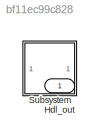
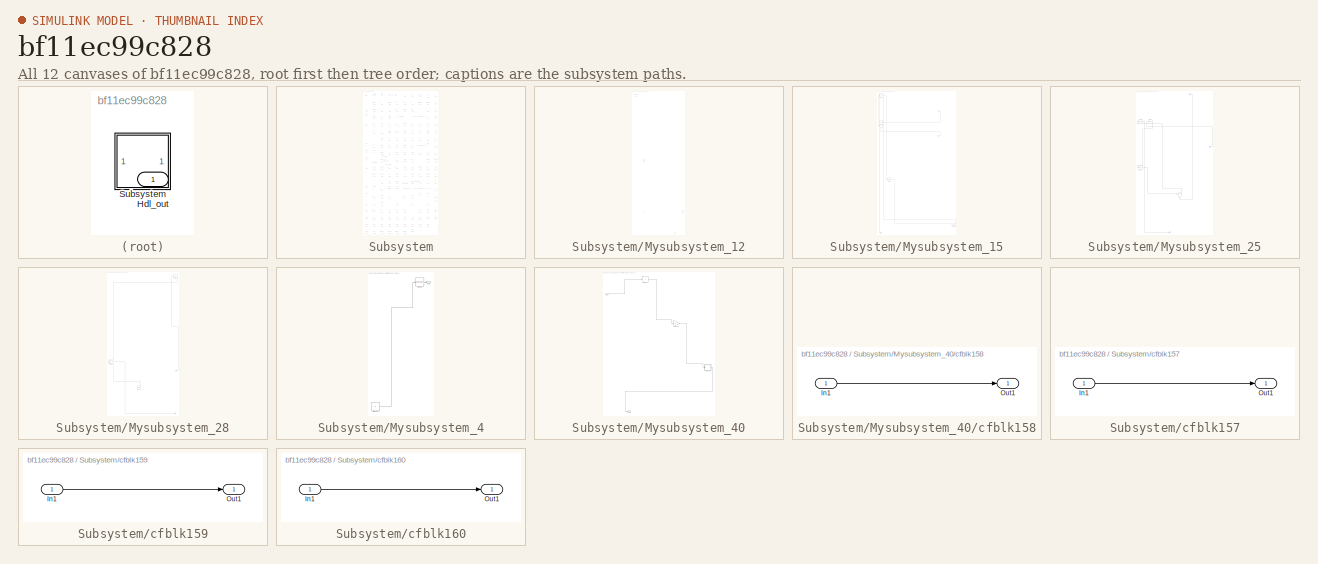
[diagram: thumbnail index - all 12 canvases of the model, root first then tree order]
MODEL slx_bf11ec99c828
KIND model
CONFIG AbsTol = auto
CONFIG EnableMultiTasking = off
CONFIG FixedStep = auto
CONFIG MaxStep = auto
CONFIG MinStep = auto
CONFIG RelTol = 1e-3
CONFIG SampleTimeConstraint = Unconstrained
CONFIG SolverName = VariableStepAuto
CONFIG StartTime = 0.0
CONFIG StopTime = 10.0
BLOCK [Outport] Hdl_out
  OutDataTypeStr = uint8
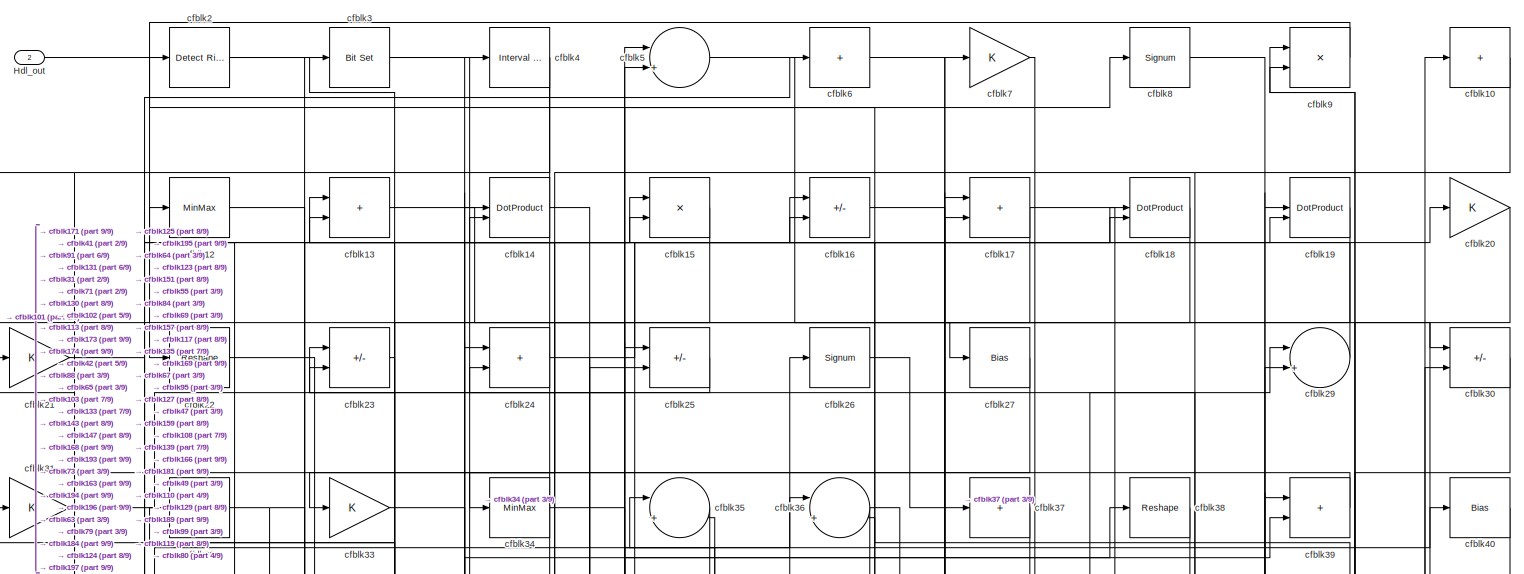
[diagram: Subsystem - part 1/9, full width, top band]
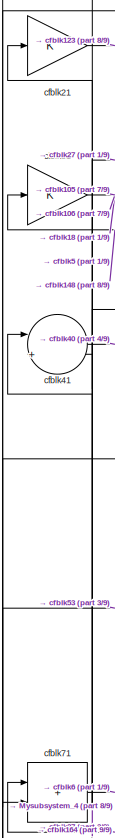
[diagram: Subsystem - part 2/9, top left region]
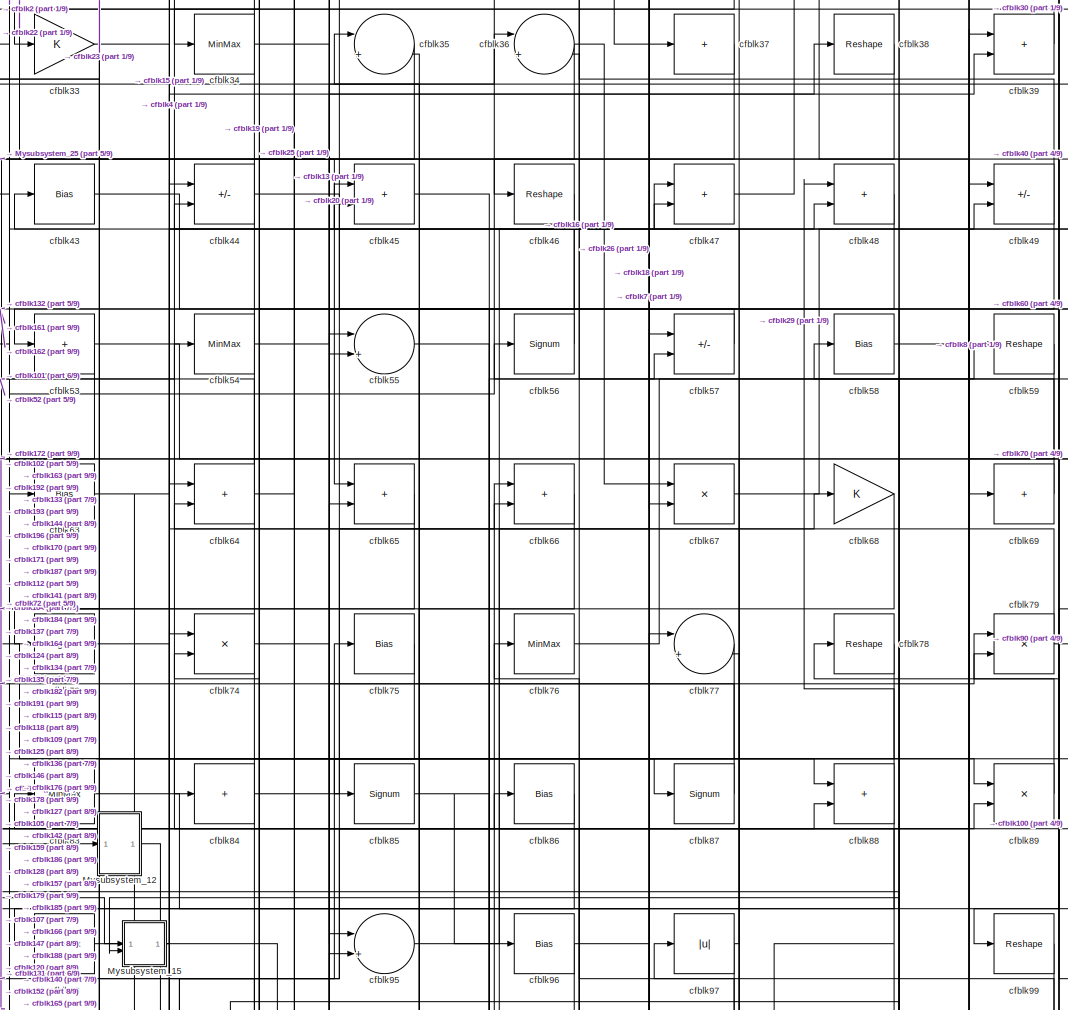
[diagram: Subsystem - part 3/9, top center region]
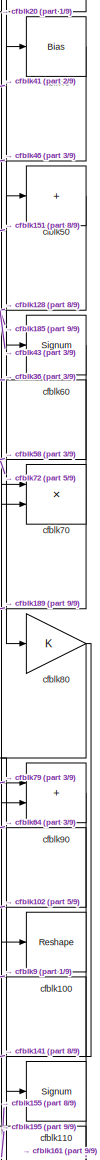
[diagram: Subsystem - part 4/9, middle right region]
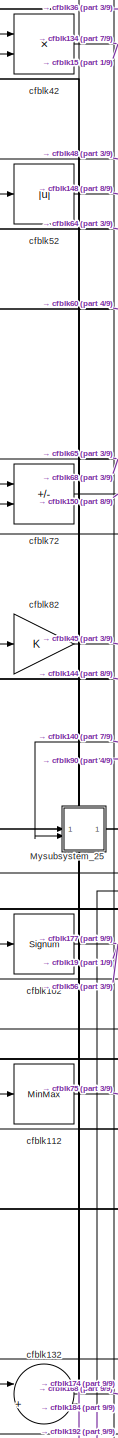
[diagram: Subsystem - part 5/9, middle left region]
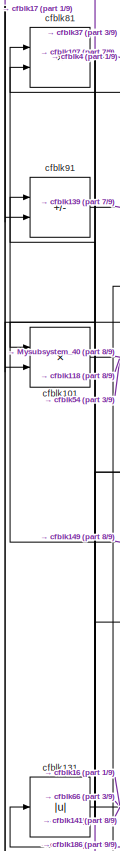
[diagram: Subsystem - part 6/9, middle left region]
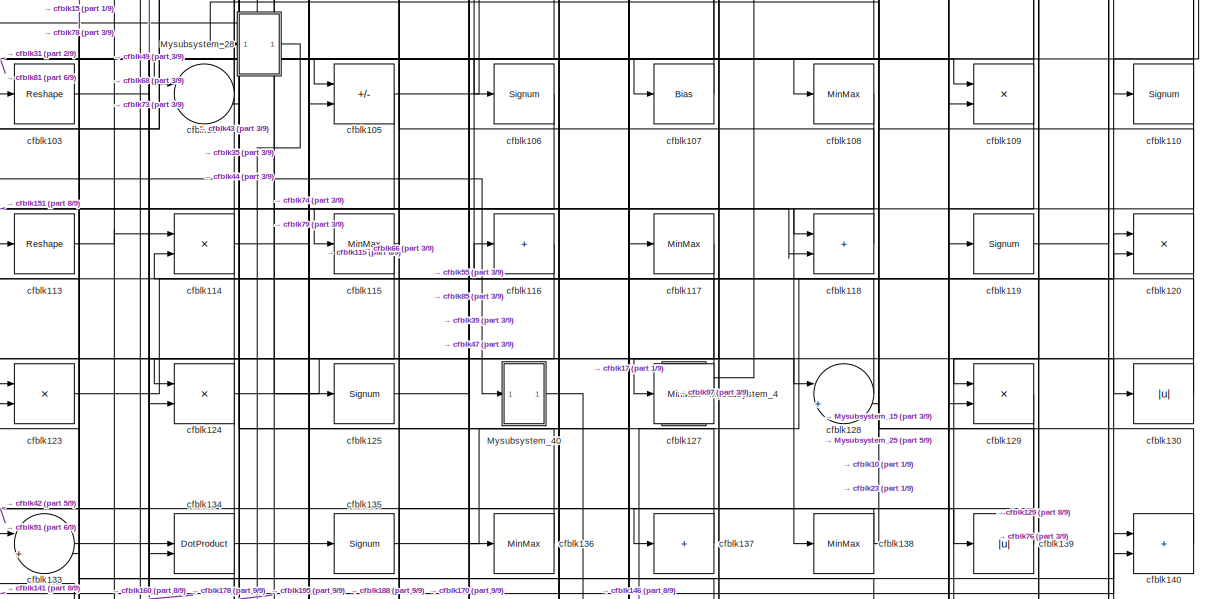
[diagram: Subsystem - part 7/9, full width, middle band]
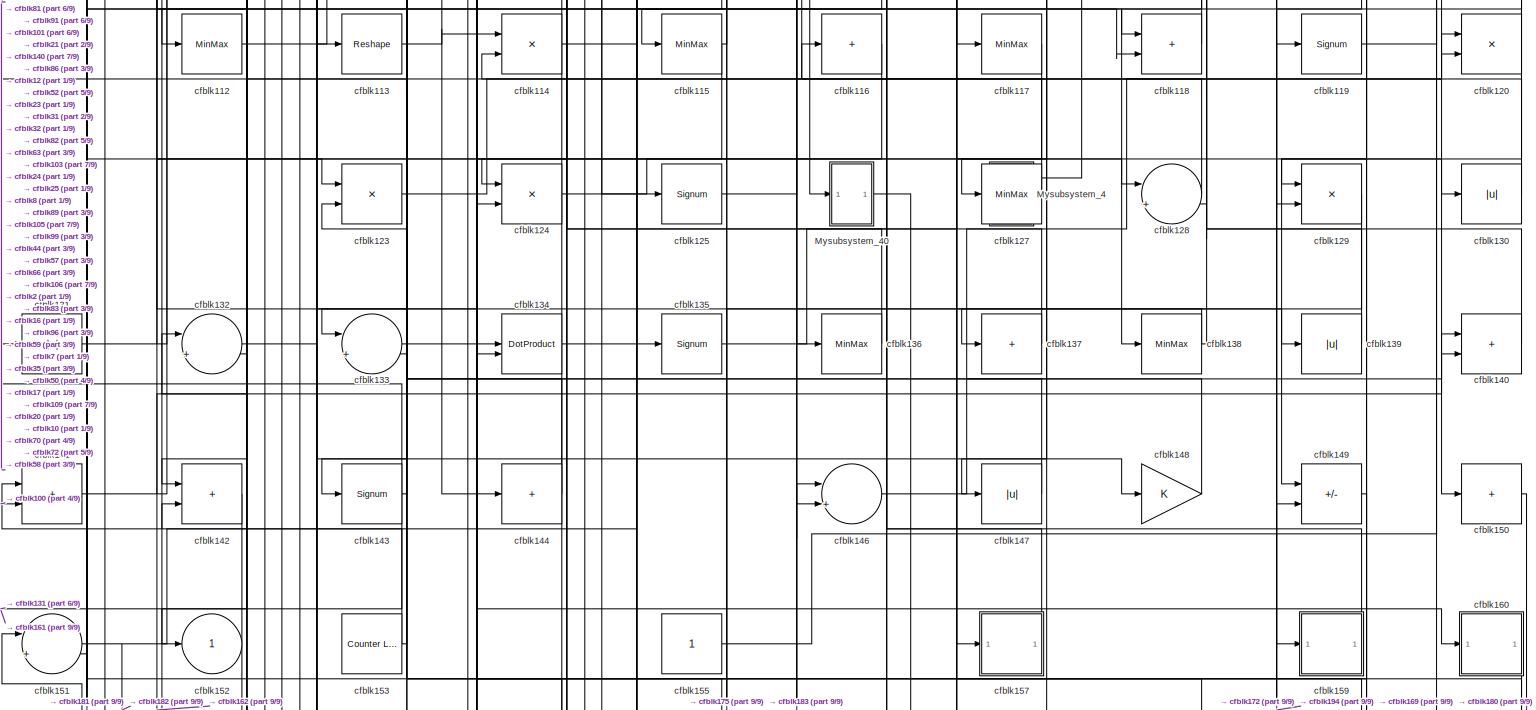
[diagram: Subsystem - part 8/9, full width, bottom band]
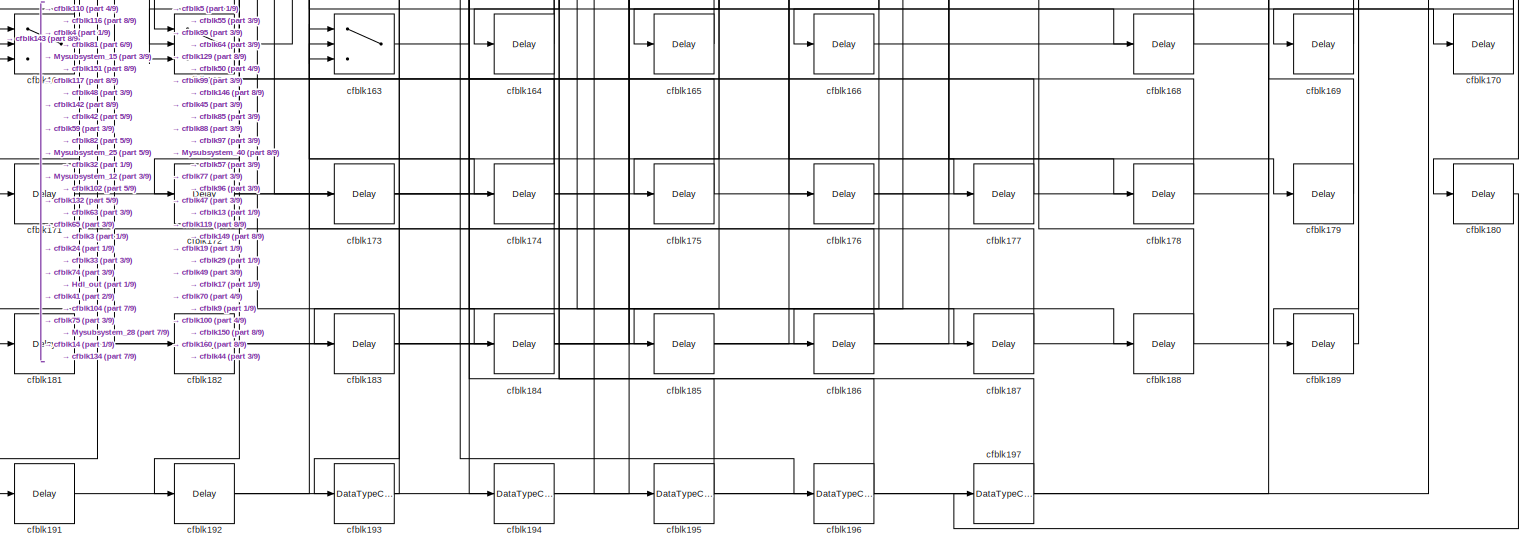
[diagram: Subsystem - part 9/9, full width, bottom band]
BLOCK [SubSystem] Subsystem
BLOCK [Outport] Subsystem/Hdl_out
  OutDataTypeStr = uint8
  Port = 2
BLOCK [SubSystem] Subsystem/Mysubsystem_12
  RTWFcnName = Mysubsystem_12
  RTWFcnNameOpts = User specified
  RTWFileNameOpts = Use function name
  RTWSystemCode = Reusable function
  TreatAsAtomicUnit = on
BLOCK [Inport] Subsystem/Mysubsystem_12/In1
BLOCK [Outport] Subsystem/Mysubsystem_12/Out1
BLOCK [Reference] Subsystem/Mysubsystem_12/cfblk1  REF=hdlsllib/Logic and Bit
Operations/Compare
To Constant
  SourceBlock = hdlsllib/Logic and Bit\nOperations/Compare\nTo Constant
  SourceType = Compare To Constant
BLOCK [Delay] Subsystem/Mysubsystem_12/cfblk167
  InputPortMap = u0
  SampleTime = 1
BLOCK [MinMax] Subsystem/Mysubsystem_12/cfblk92
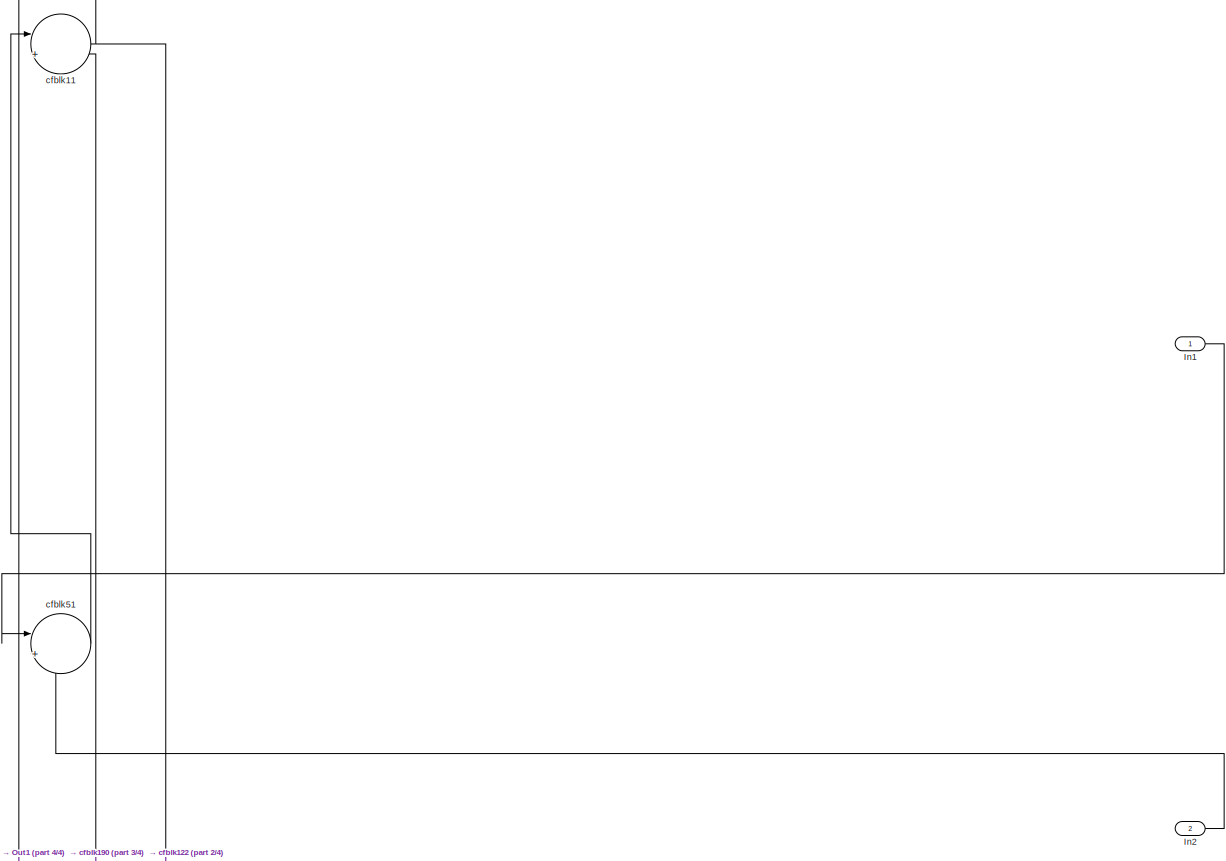
[diagram: Subsystem/Mysubsystem_15 - part 1/4, full width, top band]
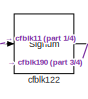
[diagram: Subsystem/Mysubsystem_15 - part 2/4, middle left region]
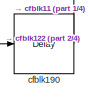
[diagram: Subsystem/Mysubsystem_15 - part 3/4, bottom right region]
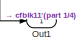
[diagram: Subsystem/Mysubsystem_15 - part 4/4, bottom left region]
BLOCK [SubSystem] Subsystem/Mysubsystem_15
  RTWFcnName = Mysubsystem_15
  RTWFcnNameOpts = User specified
  RTWFileNameOpts = Use function name
  RTWSystemCode = Reusable function
  TreatAsAtomicUnit = on
BLOCK [Inport] Subsystem/Mysubsystem_15/In1
BLOCK [Inport] Subsystem/Mysubsystem_15/In2
  Port = 2
BLOCK [Outport] Subsystem/Mysubsystem_15/Out1
BLOCK [Sum] Subsystem/Mysubsystem_15/cfblk11
  Inputs = |++
BLOCK [Signum] Subsystem/Mysubsystem_15/cfblk122
BLOCK [Delay] Subsystem/Mysubsystem_15/cfblk190
  InputPortMap = u0
  SampleTime = 1
BLOCK [Sum] Subsystem/Mysubsystem_15/cfblk51
  Inputs = |++
BLOCK [SubSystem] Subsystem/Mysubsystem_25
  RTWFcnName = Mysubsystem_25
  RTWFcnNameOpts = User specified
  RTWFileNameOpts = Use function name
  RTWSystemCode = Reusable function
  TreatAsAtomicUnit = on
BLOCK [Inport] Subsystem/Mysubsystem_25/In1
BLOCK [Inport] Subsystem/Mysubsystem_25/In2
  Port = 2
BLOCK [Outport] Subsystem/Mysubsystem_25/Out1
BLOCK [Bias] Subsystem/Mysubsystem_25/cfblk111
  Bias = 0.0
  SaturateOnIntegerOverflow = off
BLOCK [Sum] Subsystem/Mysubsystem_25/cfblk145
  Inputs = |++
BLOCK [Reshape] Subsystem/Mysubsystem_25/cfblk61
BLOCK [Bias] Subsystem/Mysubsystem_25/cfblk62
  Bias = 0.0
  SaturateOnIntegerOverflow = off
BLOCK [SubSystem] Subsystem/Mysubsystem_28
  RTWFcnName = Mysubsystem_28
  RTWFcnNameOpts = User specified
  RTWFileNameOpts = Use function name
  RTWSystemCode = Reusable function
  TreatAsAtomicUnit = on
BLOCK [Inport] Subsystem/Mysubsystem_28/In1
BLOCK [Outport] Subsystem/Mysubsystem_28/Out1
BLOCK [Sum] Subsystem/Mysubsystem_28/cfblk121
  IconShape = rectangular
  Inputs = +-
BLOCK [Reference] Subsystem/Mysubsystem_28/cfblk154  REF=hdlsllib/Sources/Counter
Limited
  SourceBlock = hdlsllib/Sources/Counter\nLimited
  SourceType = Counter Limited
BLOCK [Abs] Subsystem/Mysubsystem_28/cfblk28
  SaturateOnIntegerOverflow = off
BLOCK [SubSystem] Subsystem/Mysubsystem_4
  RTWFcnName = Mysubsystem_4
  RTWFcnNameOpts = User specified
  RTWFileNameOpts = Use function name
  RTWSystemCode = Reusable function
  TreatAsAtomicUnit = on
BLOCK [Outport] Subsystem/Mysubsystem_4/Out1
BLOCK [Constant] Subsystem/Mysubsystem_4/cfblk156
  SampleTime = -1
BLOCK [Reshape] Subsystem/Mysubsystem_4/cfblk98
BLOCK [SubSystem] Subsystem/Mysubsystem_40
  RTWFcnName = Mysubsystem_40
  RTWFcnNameOpts = User specified
  RTWFileNameOpts = Use function name
  RTWSystemCode = Reusable function
  TreatAsAtomicUnit = on
BLOCK [Inport] Subsystem/Mysubsystem_40/In1
BLOCK [Outport] Subsystem/Mysubsystem_40/Out1
BLOCK [Gain] Subsystem/Mysubsystem_40/cfblk126
BLOCK [SubSystem] Subsystem/Mysubsystem_40/cfblk158
  LibrarySourceBlock = hdlsllib/Ports &\nSubsystems/Subsystem
BLOCK [Inport] Subsystem/Mysubsystem_40/cfblk158/In1
BLOCK [Outport] Subsystem/Mysubsystem_40/cfblk158/Out1
BLOCK [Sum] Subsystem/Mysubsystem_40/cfblk94
  IconShape = rectangular
  Inputs = +
BLOCK [Sum] Subsystem/cfblk10
  IconShape = rectangular
  Inputs = +
  OutDataTypeStr = uint8
BLOCK [Reshape] Subsystem/cfblk100
BLOCK [Product] Subsystem/cfblk101
  Inputs = */
  OutDataTypeStr = uint8
  RndMeth = Zero
  SaturateOnIntegerOverflow = on
BLOCK [Signum] Subsystem/cfblk102
BLOCK [Reshape] Subsystem/cfblk103
BLOCK [Sum] Subsystem/cfblk104
  Inputs = |++
  OutDataTypeStr = uint8
BLOCK [Sum] Subsystem/cfblk105
  IconShape = rectangular
  Inputs = +-
  OutDataTypeStr = uint8
BLOCK [Signum] Subsystem/cfblk106
BLOCK [Bias] Subsystem/cfblk107
  Bias = 0.0
  SaturateOnIntegerOverflow = off
BLOCK [MinMax] Subsystem/cfblk108
  OutDataTypeStr = uint8
BLOCK [Product] Subsystem/cfblk109
  Inputs = */
  OutDataTypeStr = uint8
  RndMeth = Zero
  SaturateOnIntegerOverflow = on
BLOCK [Signum] Subsystem/cfblk110
BLOCK [MinMax] Subsystem/cfblk112
  OutDataTypeStr = uint8
BLOCK [Reshape] Subsystem/cfblk113
BLOCK [Product] Subsystem/cfblk114
  Inputs = */
  OutDataTypeStr = uint8
  RndMeth = Zero
  SaturateOnIntegerOverflow = on
BLOCK [MinMax] Subsystem/cfblk115
  OutDataTypeStr = uint8
BLOCK [Sum] Subsystem/cfblk116
  IconShape = rectangular
  Inputs = +
  OutDataTypeStr = uint8
BLOCK [MinMax] Subsystem/cfblk117
  OutDataTypeStr = uint8
BLOCK [Sum] Subsystem/cfblk118
  IconShape = rectangular
  OutDataTypeStr = uint8
BLOCK [Signum] Subsystem/cfblk119
BLOCK [MinMax] Subsystem/cfblk12
  OutDataTypeStr = uint8
BLOCK [Product] Subsystem/cfblk120
  Inputs = */
  OutDataTypeStr = uint8
  RndMeth = Zero
  SaturateOnIntegerOverflow = on
BLOCK [Product] Subsystem/cfblk123
  Inputs = */
  OutDataTypeStr = uint8
  RndMeth = Zero
  SaturateOnIntegerOverflow = on
BLOCK [Product] Subsystem/cfblk124
  Inputs = */
  OutDataTypeStr = uint8
  RndMeth = Zero
  SaturateOnIntegerOverflow = on
BLOCK [Signum] Subsystem/cfblk125
BLOCK [MinMax] Subsystem/cfblk127
  OutDataTypeStr = uint8
BLOCK [Sum] Subsystem/cfblk128
  Inputs = |++
  OutDataTypeStr = uint8
BLOCK [Product] Subsystem/cfblk129
  Inputs = */
  OutDataTypeStr = uint8
  RndMeth = Zero
  SaturateOnIntegerOverflow = on
BLOCK [Sum] Subsystem/cfblk13
  IconShape = rectangular
  OutDataTypeStr = uint8
BLOCK [Abs] Subsystem/cfblk130
  OutDataTypeStr = uint8
  SaturateOnIntegerOverflow = off
BLOCK [Abs] Subsystem/cfblk131
  OutDataTypeStr = uint8
  SaturateOnIntegerOverflow = off
BLOCK [Sum] Subsystem/cfblk132
  Inputs = |++
  OutDataTypeStr = uint8
BLOCK [Sum] Subsystem/cfblk133
  Inputs = |++
  OutDataTypeStr = uint8
BLOCK [DotProduct] Subsystem/cfblk134
  OutDataTypeStr = uint8
BLOCK [Signum] Subsystem/cfblk135
BLOCK [MinMax] Subsystem/cfblk136
  OutDataTypeStr = uint8
BLOCK [Sum] Subsystem/cfblk137
  IconShape = rectangular
  Inputs = +
  OutDataTypeStr = uint8
BLOCK [MinMax] Subsystem/cfblk138
  OutDataTypeStr = uint8
BLOCK [Abs] Subsystem/cfblk139
  OutDataTypeStr = uint8
  SaturateOnIntegerOverflow = off
BLOCK [DotProduct] Subsystem/cfblk14
  OutDataTypeStr = uint8
BLOCK [Sum] Subsystem/cfblk140
  IconShape = rectangular
  OutDataTypeStr = uint8
BLOCK [Sum] Subsystem/cfblk141
  IconShape = rectangular
  OutDataTypeStr = uint8
BLOCK [Sum] Subsystem/cfblk142
  IconShape = rectangular
  OutDataTypeStr = uint8
BLOCK [Signum] Subsystem/cfblk143
BLOCK [Sum] Subsystem/cfblk144
  IconShape = rectangular
  Inputs = +
  OutDataTypeStr = uint8
BLOCK [Sum] Subsystem/cfblk146
  Inputs = |++
  OutDataTypeStr = uint8
BLOCK [Abs] Subsystem/cfblk147
  OutDataTypeStr = uint8
  SaturateOnIntegerOverflow = off
BLOCK [Gain] Subsystem/cfblk148
  OutDataTypeStr = uint8
BLOCK [Sum] Subsystem/cfblk149
  IconShape = rectangular
  Inputs = +-
  OutDataTypeStr = uint8
BLOCK [Product] Subsystem/cfblk15
  Inputs = */
  OutDataTypeStr = uint8
  RndMeth = Zero
  SaturateOnIntegerOverflow = on
BLOCK [Sum] Subsystem/cfblk150
  IconShape = rectangular
  Inputs = +
  OutDataTypeStr = uint8
BLOCK [Sum] Subsystem/cfblk151
  Inputs = |++
  OutDataTypeStr = uint8
BLOCK [Outport] Subsystem/cfblk152
  OutDataTypeStr = uint8
  VectorParamsAs1DForOutWhenUnconnected = off
BLOCK [Reference] Subsystem/cfblk153  REF=hdlsllib/Sources/Counter
Limited
  SourceBlock = hdlsllib/Sources/Counter\nLimited
  SourceType = Counter Limited
BLOCK [Constant] Subsystem/cfblk155
  OutDataTypeStr = uint8
  SampleTime = -1
BLOCK [SubSystem] Subsystem/cfblk157
  LibrarySourceBlock = hdlsllib/Ports &\nSubsystems/Subsystem
BLOCK [Inport] Subsystem/cfblk157/In1
BLOCK [Outport] Subsystem/cfblk157/Out1
BLOCK [SubSystem] Subsystem/cfblk159
  LibrarySourceBlock = hdlsllib/Ports &\nSubsystems/Subsystem
BLOCK [Inport] Subsystem/cfblk159/In1
BLOCK [Outport] Subsystem/cfblk159/Out1
BLOCK [Sum] Subsystem/cfblk16
  IconShape = rectangular
  Inputs = +-
  OutDataTypeStr = uint8
BLOCK [SubSystem] Subsystem/cfblk160
  LibrarySourceBlock = hdlsllib/Ports &\nSubsystems/Subsystem
BLOCK [Inport] Subsystem/cfblk160/In1
BLOCK [Outport] Subsystem/cfblk160/Out1
BLOCK [Switch] Subsystem/cfblk161
  InputSameDT = off
  OutDataTypeStr = uint8
  SaturateOnIntegerOverflow = off
BLOCK [Switch] Subsystem/cfblk162
  InputSameDT = off
  OutDataTypeStr = uint8
  SaturateOnIntegerOverflow = off
BLOCK [Switch] Subsystem/cfblk163
  InputSameDT = off
  OutDataTypeStr = uint8
  SaturateOnIntegerOverflow = off
BLOCK [Delay] Subsystem/cfblk164
  InputPortMap = u0
  SampleTime = 1
BLOCK [Delay] Subsystem/cfblk165
  InputPortMap = u0
  SampleTime = 1
BLOCK [Delay] Subsystem/cfblk166
  InputPortMap = u0
  SampleTime = 1
BLOCK [Delay] Subsystem/cfblk168
  InputPortMap = u0
  SampleTime = 1
BLOCK [Delay] Subsystem/cfblk169
  InputPortMap = u0
  SampleTime = 1
BLOCK [Sum] Subsystem/cfblk17
  IconShape = rectangular
  OutDataTypeStr = uint8
BLOCK [Delay] Subsystem/cfblk170
  InputPortMap = u0
  SampleTime = 1
BLOCK [Delay] Subsystem/cfblk171
  InputPortMap = u0
  SampleTime = 1
BLOCK [Delay] Subsystem/cfblk172
  InputPortMap = u0
  SampleTime = 1
BLOCK [Delay] Subsystem/cfblk173
  InputPortMap = u0
  SampleTime = 1
BLOCK [Delay] Subsystem/cfblk174
  InputPortMap = u0
  SampleTime = 1
BLOCK [Delay] Subsystem/cfblk175
  InputPortMap = u0
  SampleTime = 1
BLOCK [Delay] Subsystem/cfblk176
  InputPortMap = u0
  SampleTime = 1
BLOCK [Delay] Subsystem/cfblk177
  InputPortMap = u0
  SampleTime = 1
BLOCK [Delay] Subsystem/cfblk178
  InputPortMap = u0
  SampleTime = 1
BLOCK [Delay] Subsystem/cfblk179
  InputPortMap = u0
  SampleTime = 1
BLOCK [DotProduct] Subsystem/cfblk18
  OutDataTypeStr = uint8
BLOCK [Delay] Subsystem/cfblk180
  InputPortMap = u0
  SampleTime = 1
BLOCK [Delay] Subsystem/cfblk181
  InputPortMap = u0
  SampleTime = 1
BLOCK [Delay] Subsystem/cfblk182
  InputPortMap = u0
  SampleTime = 1
BLOCK [Delay] Subsystem/cfblk183
  InputPortMap = u0
  SampleTime = 1
BLOCK [Delay] Subsystem/cfblk184
  InputPortMap = u0
  SampleTime = 1
BLOCK [Delay] Subsystem/cfblk185
  InputPortMap = u0
  SampleTime = 1
BLOCK [Delay] Subsystem/cfblk186
  InputPortMap = u0
  SampleTime = 1
BLOCK [Delay] Subsystem/cfblk187
  InputPortMap = u0
  SampleTime = 1
BLOCK [Delay] Subsystem/cfblk188
  InputPortMap = u0
  SampleTime = 1
BLOCK [Delay] Subsystem/cfblk189
  InputPortMap = u0
  SampleTime = 1
BLOCK [DotProduct] Subsystem/cfblk19
  OutDataTypeStr = uint8
BLOCK [Delay] Subsystem/cfblk191
  InputPortMap = u0
  SampleTime = 1
BLOCK [Delay] Subsystem/cfblk192
  InputPortMap = u0
  SampleTime = 1
BLOCK [DataTypeConversion] Subsystem/cfblk193
  OutDataTypeStr = uint8
  RndMeth = Floor
  SaturateOnIntegerOverflow = off
BLOCK [DataTypeConversion] Subsystem/cfblk194
  OutDataTypeStr = uint8
  RndMeth = Floor
  SaturateOnIntegerOverflow = off
BLOCK [DataTypeConversion] Subsystem/cfblk195
  OutDataTypeStr = uint8
  RndMeth = Floor
  SaturateOnIntegerOverflow = off
BLOCK [DataTypeConversion] Subsystem/cfblk196
  OutDataTypeStr = uint8
  RndMeth = Floor
  SaturateOnIntegerOverflow = off
BLOCK [DataTypeConversion] Subsystem/cfblk197
  OutDataTypeStr = uint8
  RndMeth = Floor
  SaturateOnIntegerOverflow = off
BLOCK [Reference] Subsystem/cfblk2  REF=hdlsllib/Logic and Bit
Operations/Detect Rise
Nonnegative
  SourceBlock = hdlsllib/Logic and Bit\nOperations/Detect Rise\nNonnegative
  SourceType = Detect Rise Nonnegative
BLOCK [Gain] Subsystem/cfblk20
  OutDataTypeStr = uint8
BLOCK [Gain] Subsystem/cfblk21
  OutDataTypeStr = uint8
BLOCK [Reshape] Subsystem/cfblk22
BLOCK [Sum] Subsystem/cfblk23
  IconShape = rectangular
  Inputs = +-
  OutDataTypeStr = uint8
BLOCK [Sum] Subsystem/cfblk24
  IconShape = rectangular
  OutDataTypeStr = uint8
BLOCK [Sum] Subsystem/cfblk25
  IconShape = rectangular
  Inputs = +-
  OutDataTypeStr = uint8
BLOCK [Signum] Subsystem/cfblk26
BLOCK [Bias] Subsystem/cfblk27
  Bias = 0.0
  SaturateOnIntegerOverflow = off
BLOCK [Sum] Subsystem/cfblk29
  Inputs = |++
  OutDataTypeStr = uint8
BLOCK [Reference] Subsystem/cfblk3  REF=simulink/Logic and Bit
Operations/Bit Set
  LibrarySourceBlock = hdlsllib/Logic and Bit\nOperations/Bit Set
  SourceBlock = simulink/Logic and Bit\nOperations/Bit Set
  SourceType = Bit Set
BLOCK [Sum] Subsystem/cfblk30
  IconShape = rectangular
  Inputs = +-
  OutDataTypeStr = uint8
BLOCK [Gain] Subsystem/cfblk31
  OutDataTypeStr = uint8
BLOCK [MinMax] Subsystem/cfblk32
  OutDataTypeStr = uint8
BLOCK [Gain] Subsystem/cfblk33
  OutDataTypeStr = uint8
BLOCK [MinMax] Subsystem/cfblk34
  OutDataTypeStr = uint8
BLOCK [Sum] Subsystem/cfblk35
  Inputs = |++
  OutDataTypeStr = uint8
BLOCK [Sum] Subsystem/cfblk36
  Inputs = |++
  OutDataTypeStr = uint8
BLOCK [Sum] Subsystem/cfblk37
  IconShape = rectangular
  Inputs = +
  OutDataTypeStr = uint8
BLOCK [Reshape] Subsystem/cfblk38
BLOCK [Sum] Subsystem/cfblk39
  IconShape = rectangular
  OutDataTypeStr = uint8
BLOCK [Reference] Subsystem/cfblk4  REF=hdlsllib/Logic and Bit
Operations/Interval Test
  SourceBlock = hdlsllib/Logic and Bit\nOperations/Interval Test
  SourceType = Interval Test
BLOCK [Bias] Subsystem/cfblk40
  Bias = 0.0
  SaturateOnIntegerOverflow = off
BLOCK [Sum] Subsystem/cfblk41
  Inputs = |++
  OutDataTypeStr = uint8
BLOCK [Product] Subsystem/cfblk42
  Inputs = */
  OutDataTypeStr = uint8
  RndMeth = Zero
  SaturateOnIntegerOverflow = on
BLOCK [Bias] Subsystem/cfblk43
  Bias = 0.0
  SaturateOnIntegerOverflow = off
BLOCK [Sum] Subsystem/cfblk44
  IconShape = rectangular
  Inputs = +-
  OutDataTypeStr = uint8
BLOCK [Sum] Subsystem/cfblk45
  IconShape = rectangular
  OutDataTypeStr = uint8
BLOCK [Reshape] Subsystem/cfblk46
BLOCK [Sum] Subsystem/cfblk47
  IconShape = rectangular
  OutDataTypeStr = uint8
BLOCK [Sum] Subsystem/cfblk48
  IconShape = rectangular
  OutDataTypeStr = uint8
BLOCK [Sum] Subsystem/cfblk49
  IconShape = rectangular
  Inputs = +-
  OutDataTypeStr = uint8
BLOCK [Sum] Subsystem/cfblk5
  Inputs = |++
  OutDataTypeStr = uint8
BLOCK [Sum] Subsystem/cfblk50
  IconShape = rectangular
  Inputs = +
  OutDataTypeStr = uint8
BLOCK [Abs] Subsystem/cfblk52
  OutDataTypeStr = uint8
  SaturateOnIntegerOverflow = off
BLOCK [Sum] Subsystem/cfblk53
  IconShape = rectangular
  Inputs = +
  OutDataTypeStr = uint8
BLOCK [MinMax] Subsystem/cfblk54
  OutDataTypeStr = uint8
BLOCK [Sum] Subsystem/cfblk55
  Inputs = |++
  OutDataTypeStr = uint8
BLOCK [Signum] Subsystem/cfblk56
BLOCK [Sum] Subsystem/cfblk57
  IconShape = rectangular
  Inputs = +-
  OutDataTypeStr = uint8
BLOCK [Bias] Subsystem/cfblk58
  Bias = 0.0
  SaturateOnIntegerOverflow = off
BLOCK [Reshape] Subsystem/cfblk59
BLOCK [Sum] Subsystem/cfblk6
  IconShape = rectangular
  Inputs = +
  OutDataTypeStr = uint8
BLOCK [Signum] Subsystem/cfblk60
BLOCK [Bias] Subsystem/cfblk63
  Bias = 0.0
  SaturateOnIntegerOverflow = off
BLOCK [Sum] Subsystem/cfblk64
  IconShape = rectangular
  OutDataTypeStr = uint8
BLOCK [Sum] Subsystem/cfblk65
  IconShape = rectangular
  OutDataTypeStr = uint8
BLOCK [Sum] Subsystem/cfblk66
  IconShape = rectangular
  OutDataTypeStr = uint8
BLOCK [Product] Subsystem/cfblk67
  Inputs = */
  OutDataTypeStr = uint8
  RndMeth = Zero
  SaturateOnIntegerOverflow = on
BLOCK [Gain] Subsystem/cfblk68
  OutDataTypeStr = uint8
BLOCK [Sum] Subsystem/cfblk69
  IconShape = rectangular
  Inputs = +
  OutDataTypeStr = uint8
BLOCK [Gain] Subsystem/cfblk7
  OutDataTypeStr = uint8
BLOCK [Product] Subsystem/cfblk70
  Inputs = */
  OutDataTypeStr = uint8
  RndMeth = Zero
  SaturateOnIntegerOverflow = on
BLOCK [Sum] Subsystem/cfblk71
  IconShape = rectangular
  OutDataTypeStr = uint8
BLOCK [Sum] Subsystem/cfblk72
  IconShape = rectangular
  Inputs = +-
  OutDataTypeStr = uint8
BLOCK [Signum] Subsystem/cfblk73
BLOCK [Product] Subsystem/cfblk74
  Inputs = */
  OutDataTypeStr = uint8
  RndMeth = Zero
  SaturateOnIntegerOverflow = on
BLOCK [Bias] Subsystem/cfblk75
  Bias = 0.0
  SaturateOnIntegerOverflow = off
BLOCK [MinMax] Subsystem/cfblk76
  OutDataTypeStr = uint8
BLOCK [Sum] Subsystem/cfblk77
  Inputs = |++
  OutDataTypeStr = uint8
BLOCK [Reshape] Subsystem/cfblk78
BLOCK [Product] Subsystem/cfblk79
  Inputs = */
  OutDataTypeStr = uint8
  RndMeth = Zero
  SaturateOnIntegerOverflow = on
BLOCK [Signum] Subsystem/cfblk8
BLOCK [Gain] Subsystem/cfblk80
  OutDataTypeStr = uint8
BLOCK [Product] Subsystem/cfblk81
  Inputs = */
  OutDataTypeStr = uint8
  RndMeth = Zero
  SaturateOnIntegerOverflow = on
BLOCK [Gain] Subsystem/cfblk82
  OutDataTypeStr = uint8
BLOCK [MinMax] Subsystem/cfblk83
  OutDataTypeStr = uint8
BLOCK [Sum] Subsystem/cfblk84
  IconShape = rectangular
  Inputs = +
  OutDataTypeStr = uint8
BLOCK [Signum] Subsystem/cfblk85
BLOCK [Bias] Subsystem/cfblk86
  Bias = 0.0
  SaturateOnIntegerOverflow = off
BLOCK [Signum] Subsystem/cfblk87
BLOCK [Sum] Subsystem/cfblk88
  IconShape = rectangular
  OutDataTypeStr = uint8
BLOCK [Product] Subsystem/cfblk89
  Inputs = */
  OutDataTypeStr = uint8
  RndMeth = Zero
  SaturateOnIntegerOverflow = on
BLOCK [Product] Subsystem/cfblk9
  Inputs = */
  OutDataTypeStr = uint8
  RndMeth = Zero
  SaturateOnIntegerOverflow = on
BLOCK [Sum] Subsystem/cfblk90
  IconShape = rectangular
  OutDataTypeStr = uint8
BLOCK [Sum] Subsystem/cfblk91
  IconShape = rectangular
  Inputs = +-
  OutDataTypeStr = uint8
BLOCK [MinMax] Subsystem/cfblk93
  OutDataTypeStr = uint8
BLOCK [Sum] Subsystem/cfblk95
  Inputs = |++
  OutDataTypeStr = uint8
BLOCK [Bias] Subsystem/cfblk96
  Bias = 0.0
  SaturateOnIntegerOverflow = off
BLOCK [Abs] Subsystem/cfblk97
  OutDataTypeStr = uint8
  SaturateOnIntegerOverflow = off
BLOCK [Reshape] Subsystem/cfblk99
LINE Subsystem/Mysubsystem_12/In1:1 -> Subsystem/Mysubsystem_12/cfblk167:1
LINE Subsystem/Mysubsystem_12/cfblk167:1 -> Subsystem/Mysubsystem_12/cfblk1:1
LINE Subsystem/Mysubsystem_12/cfblk1:1 -> Subsystem/Mysubsystem_12/cfblk92:1
LINE Subsystem/Mysubsystem_12/cfblk92:1 -> Subsystem/Mysubsystem_12/Out1:1
LINE Subsystem/Mysubsystem_12:1 -> Subsystem/cfblk196:1
LINE Subsystem/Mysubsystem_15/In1:1 -> Subsystem/Mysubsystem_15/cfblk51:1
LINE Subsystem/Mysubsystem_15/In2:1 -> Subsystem/Mysubsystem_15/cfblk51:2
NET Subsystem/Mysubsystem_15/cfblk11:1 -> Subsystem/Mysubsystem_15/Out1:1, Subsystem/Mysubsystem_15/cfblk122:1
LINE Subsystem/Mysubsystem_15/cfblk122:1 -> Subsystem/Mysubsystem_15/cfblk190:1
LINE Subsystem/Mysubsystem_15/cfblk190:1 -> Subsystem/Mysubsystem_15/cfblk11:2
LINE Subsystem/Mysubsystem_15/cfblk51:1 -> Subsystem/Mysubsystem_15/cfblk11:1
LINE Subsystem/Mysubsystem_15:1 -> Subsystem/cfblk191:1
LINE Subsystem/Mysubsystem_25/In1:1 -> Subsystem/Mysubsystem_25/cfblk145:2
LINE Subsystem/Mysubsystem_25/In2:1 -> Subsystem/Mysubsystem_25/cfblk62:1
LINE Subsystem/Mysubsystem_25/cfblk111:1 -> Subsystem/Mysubsystem_25/cfblk145:1
LINE Subsystem/Mysubsystem_25/cfblk145:1 -> Subsystem/Mysubsystem_25/cfblk61:1
LINE Subsystem/Mysubsystem_25/cfblk61:1 -> Subsystem/Mysubsystem_25/Out1:1
LINE Subsystem/Mysubsystem_25/cfblk62:1 -> Subsystem/Mysubsystem_25/cfblk111:1
LINE Subsystem/Mysubsystem_25:1 -> Subsystem/cfblk184:1
LINE Subsystem/Mysubsystem_28/In1:1 -> Subsystem/Mysubsystem_28/cfblk28:1
LINE Subsystem/Mysubsystem_28/cfblk121:1 -> Subsystem/Mysubsystem_28/Out1:1
LINE Subsystem/Mysubsystem_28/cfblk154:1 -> Subsystem/Mysubsystem_28/cfblk121:2
LINE Subsystem/Mysubsystem_28/cfblk28:1 -> Subsystem/Mysubsystem_28/cfblk121:1
LINE Subsystem/Mysubsystem_28:1 -> Subsystem/cfblk188:1
LINE Subsystem/Mysubsystem_4/cfblk156:1 -> Subsystem/Mysubsystem_4/cfblk98:1
LINE Subsystem/Mysubsystem_4/cfblk98:1 -> Subsystem/Mysubsystem_4/Out1:1
LINE Subsystem/Mysubsystem_40/In1:1 -> Subsystem/Mysubsystem_40/cfblk94:1
LINE Subsystem/Mysubsystem_40/cfblk126:1 -> Subsystem/Mysubsystem_40/cfblk158:1
LINE Subsystem/Mysubsystem_40/cfblk158/In1:1 -> Subsystem/Mysubsystem_40/cfblk158/Out1:1
LINE Subsystem/Mysubsystem_40/cfblk158:1 -> Subsystem/Mysubsystem_40/Out1:1
LINE Subsystem/Mysubsystem_40/cfblk94:1 -> Subsystem/Mysubsystem_40/cfblk126:1
LINE Subsystem/Mysubsystem_40:1 -> Subsystem/cfblk183:1
NET Subsystem/Mysubsystem_4:1 -> Subsystem/cfblk143:1, Subsystem/cfblk21:1
NET Subsystem/cfblk100:1 -> Subsystem/cfblk141:2, Subsystem/cfblk64:2, Subsystem/cfblk79:2
NET Subsystem/cfblk101:1 -> Subsystem/Mysubsystem_40:1, Subsystem/cfblk118:2, Subsystem/cfblk54:1
NET Subsystem/cfblk102:1 -> Subsystem/cfblk177:1, Subsystem/cfblk19:2, Subsystem/cfblk56:1
LINE Subsystem/cfblk103:1 -> Subsystem/cfblk160:1
LINE Subsystem/cfblk104:1 -> Subsystem/cfblk43:1
NET Subsystem/cfblk105:1 -> Subsystem/cfblk151:2, Subsystem/cfblk39:1, Subsystem/cfblk47:1
LINE Subsystem/cfblk106:1 -> Subsystem/cfblk115:1
LINE Subsystem/cfblk107:1 -> Subsystem/cfblk97:1
LINE Subsystem/cfblk108:1 -> Subsystem/cfblk138:1
NET Subsystem/cfblk109:1 -> Subsystem/cfblk129:2, Subsystem/cfblk76:1
NET Subsystem/cfblk10:1 -> Subsystem/cfblk108:1, Subsystem/cfblk124:1
NET Subsystem/cfblk110:1 -> Subsystem/cfblk161:1, Subsystem/cfblk9:1
LINE Subsystem/cfblk112:1 -> Subsystem/cfblk75:1
LINE Subsystem/cfblk113:1 -> Subsystem/cfblk114:1
LINE Subsystem/cfblk114:1 -> Subsystem/cfblk118:1
NET Subsystem/cfblk115:1 -> Subsystem/cfblk124:2, Subsystem/cfblk35:2
LINE Subsystem/cfblk116:1 -> Subsystem/cfblk181:1
LINE Subsystem/cfblk117:1 -> Subsystem/cfblk162:2
LINE Subsystem/cfblk118:1 -> Subsystem/cfblk35:1
LINE Subsystem/cfblk119:1 -> Subsystem/cfblk10:1
NET Subsystem/cfblk120:1 -> Subsystem/cfblk149:1, Subsystem/cfblk58:1
NET Subsystem/cfblk123:1 -> Subsystem/cfblk120:2, Subsystem/cfblk25:1
NET Subsystem/cfblk124:1 -> Subsystem/cfblk130:1, Subsystem/cfblk89:2
LINE Subsystem/cfblk125:1 -> Subsystem/cfblk57:2
LINE Subsystem/cfblk127:1 -> Subsystem/cfblk66:2
NET Subsystem/cfblk128:1 -> Subsystem/cfblk114:2, Subsystem/cfblk116:1
LINE Subsystem/cfblk129:1 -> Subsystem/cfblk175:1
LINE Subsystem/cfblk12:1 -> Subsystem/cfblk113:1
LINE Subsystem/cfblk130:1 -> Subsystem/cfblk12:1
NET Subsystem/cfblk131:1 -> Subsystem/cfblk16:1, Subsystem/cfblk66:1, Subsystem/cfblk88:2
NET Subsystem/cfblk132:1 -> Subsystem/cfblk168:1, Subsystem/cfblk42:1
NET Subsystem/cfblk133:1 -> Subsystem/cfblk49:2, Subsystem/cfblk68:1
NET Subsystem/cfblk134:1 -> Subsystem/cfblk170:1, Subsystem/cfblk79:1
LINE Subsystem/cfblk135:1 -> Subsystem/cfblk17:2
LINE Subsystem/cfblk136:1 -> Subsystem/cfblk44:2
LINE Subsystem/cfblk137:1 -> Subsystem/cfblk74:2
NET Subsystem/cfblk138:1 -> Subsystem/Mysubsystem_28:1, Subsystem/cfblk137:1
LINE Subsystem/cfblk139:1 -> Subsystem/cfblk23:1
LINE Subsystem/cfblk13:1 -> Subsystem/cfblk55:2
NET Subsystem/cfblk140:1 -> Subsystem/Mysubsystem_15:2, Subsystem/Mysubsystem_25:2
NET Subsystem/cfblk141:1 -> Subsystem/cfblk140:2, Subsystem/cfblk86:1, Subsystem/cfblk91:1
LINE Subsystem/cfblk142:1 -> Subsystem/cfblk162:3
NET Subsystem/cfblk143:1 -> Subsystem/cfblk131:1, Subsystem/cfblk161:2, Subsystem/cfblk23:2
LINE Subsystem/cfblk144:1 -> Subsystem/cfblk82:1
NET Subsystem/cfblk146:1 -> Subsystem/cfblk120:1, Subsystem/cfblk140:1
LINE Subsystem/cfblk147:1 -> Subsystem/cfblk32:1
LINE Subsystem/cfblk148:1 -> Subsystem/cfblk31:1
LINE Subsystem/cfblk149:1 -> Subsystem/cfblk81:1
LINE Subsystem/cfblk14:1 -> Subsystem/cfblk195:1
LINE Subsystem/cfblk150:1 -> Subsystem/cfblk180:1
NET Subsystem/cfblk151:1 -> Subsystem/cfblk182:1, Subsystem/cfblk50:1, Subsystem/cfblk8:1
NET Subsystem/cfblk153:1 -> Subsystem/cfblk123:2, Subsystem/cfblk141:1, Subsystem/cfblk142:2
LINE Subsystem/cfblk155:1 -> Subsystem/cfblk70:1
LINE Subsystem/cfblk157/In1:1 -> Subsystem/cfblk157/Out1:1
LINE Subsystem/cfblk157:1 -> Subsystem/cfblk2:1
LINE Subsystem/cfblk159/In1:1 -> Subsystem/cfblk159/Out1:1
LINE Subsystem/cfblk159:1 -> Subsystem/cfblk83:1
LINE Subsystem/cfblk15:1 -> Subsystem/cfblk103:1
LINE Subsystem/cfblk160/In1:1 -> Subsystem/cfblk160/Out1:1
LINE Subsystem/cfblk160:1 -> Subsystem/cfblk169:1
LINE Subsystem/cfblk161:1 -> Subsystem/cfblk151:1
LINE Subsystem/cfblk162:1 -> Subsystem/Mysubsystem_12:1
LINE Subsystem/cfblk163:1 -> Subsystem/cfblk24:1
LINE Subsystem/cfblk164:1 -> Subsystem/cfblk41:1
LINE Subsystem/cfblk165:1 -> Subsystem/cfblk64:1
LINE Subsystem/cfblk166:1 -> Subsystem/cfblk29:2
LINE Subsystem/cfblk168:1 -> Subsystem/cfblk13:2
LINE Subsystem/cfblk169:1 -> Subsystem/cfblk17:1
LINE Subsystem/cfblk16:1 -> Subsystem/cfblk117:1
LINE Subsystem/cfblk170:1 -> Subsystem/cfblk44:1
LINE Subsystem/cfblk171:1 -> Subsystem/cfblk74:1
LINE Subsystem/cfblk172:1 -> Subsystem/cfblk149:2
LINE Subsystem/cfblk173:1 -> Subsystem/cfblk5:2
LINE Subsystem/cfblk174:1 -> Subsystem/cfblk42:2
LINE Subsystem/cfblk175:1 -> Subsystem/cfblk163:2
LINE Subsystem/cfblk176:1 -> Subsystem/cfblk77:1
LINE Subsystem/cfblk177:1 -> Subsystem/cfblk132:1
LINE Subsystem/cfblk178:1 -> Subsystem/cfblk134:1
LINE Subsystem/cfblk179:1 -> Subsystem/cfblk49:1
NET Subsystem/cfblk17:1 -> Subsystem/cfblk101:2, Subsystem/cfblk133:2, Subsystem/cfblk159:1
LINE Subsystem/cfblk180:1 -> Subsystem/cfblk197:1
LINE Subsystem/cfblk181:1 -> Subsystem/cfblk19:1
LINE Subsystem/cfblk182:1 -> Subsystem/cfblk55:1
LINE Subsystem/cfblk183:1 -> Subsystem/cfblk146:1
NET Subsystem/cfblk184:1 -> Subsystem/Hdl_out:1, Subsystem/cfblk65:2
LINE Subsystem/cfblk185:1 -> Subsystem/cfblk57:1
LINE Subsystem/cfblk186:1 -> Subsystem/cfblk81:2
LINE Subsystem/cfblk187:1 -> Subsystem/cfblk163:1
LINE Subsystem/cfblk188:1 -> Subsystem/cfblk47:2
LINE Subsystem/cfblk189:1 -> Subsystem/cfblk9:2
LINE Subsystem/cfblk18:1 -> Subsystem/cfblk67:2
LINE Subsystem/cfblk191:1 -> Subsystem/cfblk95:2
LINE Subsystem/cfblk192:1 -> Subsystem/cfblk63:1
LINE Subsystem/cfblk193:1 -> Subsystem/cfblk3:1
LINE Subsystem/cfblk194:1 -> Subsystem/cfblk119:1
NET Subsystem/cfblk195:1 -> Subsystem/cfblk100:1, Subsystem/cfblk104:2
LINE Subsystem/cfblk196:1 -> Subsystem/cfblk14:1
LINE Subsystem/cfblk197:1 -> Subsystem/cfblk14:2
LINE Subsystem/cfblk19:1 -> Subsystem/cfblk34:1
NET Subsystem/cfblk20:1 -> Subsystem/cfblk129:1, Subsystem/cfblk80:1
LINE Subsystem/cfblk21:1 -> Subsystem/cfblk123:1
LINE Subsystem/cfblk22:1 -> Subsystem/cfblk65:1
LINE Subsystem/cfblk23:1 -> Subsystem/cfblk73:1
NET Subsystem/cfblk24:1 -> Subsystem/cfblk125:1, Subsystem/cfblk18:1
LINE Subsystem/cfblk25:1 -> Subsystem/cfblk24:2
LINE Subsystem/cfblk26:1 -> Subsystem/cfblk37:1
LINE Subsystem/cfblk27:1 -> Subsystem/cfblk41:2
LINE Subsystem/cfblk29:1 -> Subsystem/cfblk13:1
LINE Subsystem/cfblk2:1 -> Subsystem/cfblk88:1
LINE Subsystem/cfblk30:1 -> Subsystem/cfblk99:1
NET Subsystem/cfblk31:1 -> Subsystem/cfblk105:2, Subsystem/cfblk106:1, Subsystem/cfblk18:2, Subsystem/cfblk5:1
NET Subsystem/cfblk32:1 -> Subsystem/cfblk173:1, Subsystem/cfblk174:1
NET Subsystem/cfblk33:1 -> Subsystem/cfblk187:1, Subsystem/cfblk87:1
LINE Subsystem/cfblk34:1 -> Subsystem/cfblk89:1
LINE Subsystem/cfblk35:1 -> Subsystem/cfblk104:1
NET Subsystem/cfblk36:1 -> Subsystem/Mysubsystem_25:1, Subsystem/cfblk67:1
LINE Subsystem/cfblk37:1 -> Subsystem/cfblk101:1
LINE Subsystem/cfblk38:1 -> Subsystem/Mysubsystem_15:1
LINE Subsystem/cfblk39:1 -> Subsystem/cfblk33:1
LINE Subsystem/cfblk3:1 -> Subsystem/cfblk194:1
LINE Subsystem/cfblk40:1 -> Subsystem/cfblk46:1
LINE Subsystem/cfblk41:1 -> Subsystem/cfblk40:1
NET Subsystem/cfblk42:1 -> Subsystem/cfblk134:2, Subsystem/cfblk15:1
LINE Subsystem/cfblk43:1 -> Subsystem/cfblk60:1
LINE Subsystem/cfblk44:1 -> Subsystem/cfblk146:2
LINE Subsystem/cfblk45:1 -> Subsystem/cfblk176:1
LINE Subsystem/cfblk46:1 -> Subsystem/cfblk84:1
LINE Subsystem/cfblk47:1 -> Subsystem/cfblk29:1
NET Subsystem/cfblk48:1 -> Subsystem/cfblk132:2, Subsystem/cfblk161:3, Subsystem/cfblk162:1
NET Subsystem/cfblk49:1 -> Subsystem/cfblk16:2, Subsystem/cfblk85:1
NET Subsystem/cfblk4:1 -> Subsystem/cfblk171:1, Subsystem/cfblk91:2
NET Subsystem/cfblk50:1 -> Subsystem/cfblk128:2, Subsystem/cfblk185:1
LINE Subsystem/cfblk52:1 -> Subsystem/cfblk148:1
NET Subsystem/cfblk53:1 -> Subsystem/cfblk71:2, Subsystem/cfblk95:1
LINE Subsystem/cfblk54:1 -> Subsystem/cfblk36:1
LINE Subsystem/cfblk55:1 -> Subsystem/cfblk136:1
LINE Subsystem/cfblk56:1 -> Subsystem/cfblk45:1
LINE Subsystem/cfblk57:1 -> Subsystem/cfblk53:1
LINE Subsystem/cfblk58:1 -> Subsystem/cfblk70:2
NET Subsystem/cfblk59:1 -> Subsystem/cfblk147:1, Subsystem/cfblk172:1
LINE Subsystem/cfblk5:1 -> Subsystem/cfblk27:1
LINE Subsystem/cfblk60:1 -> Subsystem/cfblk72:1
NET Subsystem/cfblk63:1 -> Subsystem/cfblk144:1, Subsystem/cfblk15:2
NET Subsystem/cfblk64:1 -> Subsystem/cfblk25:2, Subsystem/cfblk52:1
NET Subsystem/cfblk65:1 -> Subsystem/cfblk112:1, Subsystem/cfblk163:3
LINE Subsystem/cfblk66:1 -> Subsystem/cfblk105:1
LINE Subsystem/cfblk67:1 -> Subsystem/cfblk30:2
LINE Subsystem/cfblk68:1 -> Subsystem/cfblk72:2
LINE Subsystem/cfblk69:1 -> Subsystem/cfblk26:1
LINE Subsystem/cfblk6:1 -> Subsystem/cfblk30:1
NET Subsystem/cfblk70:1 -> Subsystem/cfblk189:1, Subsystem/cfblk36:2
LINE Subsystem/cfblk71:1 -> Subsystem/cfblk6:1
LINE Subsystem/cfblk72:1 -> Subsystem/cfblk150:1
LINE Subsystem/cfblk73:1 -> Subsystem/cfblk109:1
LINE Subsystem/cfblk74:1 -> Subsystem/cfblk135:1
LINE Subsystem/cfblk75:1 -> Subsystem/cfblk164:1
LINE Subsystem/cfblk76:1 -> Subsystem/cfblk59:1
LINE Subsystem/cfblk77:1 -> Subsystem/cfblk193:1
LINE Subsystem/cfblk78:1 -> Subsystem/cfblk133:1
NET Subsystem/cfblk79:1 -> Subsystem/cfblk4:1, Subsystem/cfblk90:1
LINE Subsystem/cfblk7:1 -> Subsystem/cfblk127:1
NET Subsystem/cfblk80:1 -> Subsystem/cfblk110:1, Subsystem/cfblk90:2
LINE Subsystem/cfblk81:1 -> Subsystem/cfblk107:1
NET Subsystem/cfblk82:1 -> Subsystem/cfblk192:1, Subsystem/cfblk45:2
NET Subsystem/cfblk83:1 -> Subsystem/cfblk157:1, Subsystem/cfblk39:2
NET Subsystem/cfblk84:1 -> Subsystem/cfblk20:1, Subsystem/cfblk38:1
NET Subsystem/cfblk85:1 -> Subsystem/cfblk109:2, Subsystem/cfblk178:1, Subsystem/cfblk96:1
LINE Subsystem/cfblk86:1 -> Subsystem/cfblk93:1
LINE Subsystem/cfblk87:1 -> Subsystem/cfblk71:1
NET Subsystem/cfblk88:1 -> Subsystem/cfblk186:1, Subsystem/cfblk48:1
LINE Subsystem/cfblk89:1 -> Subsystem/cfblk78:1
LINE Subsystem/cfblk8:1 -> Subsystem/cfblk69:1
LINE Subsystem/cfblk90:1 -> Subsystem/cfblk102:1
LINE Subsystem/cfblk91:1 -> Subsystem/cfblk139:1
LINE Subsystem/cfblk93:1 -> Subsystem/cfblk48:2
LINE Subsystem/cfblk95:1 -> Subsystem/cfblk7:1
NET Subsystem/cfblk96:1 -> Subsystem/cfblk128:1, Subsystem/cfblk142:1, Subsystem/cfblk179:1
NET Subsystem/cfblk97:1 -> Subsystem/cfblk166:1, Subsystem/cfblk77:2
NET Subsystem/cfblk99:1 -> Subsystem/cfblk152:1, Subsystem/cfblk165:1
LINE Subsystem/cfblk9:1 -> Subsystem/cfblk22:1
note: NET lines group one-source signal fan-out (src -> all destinations, sorted); 1:1 wires keep LINE
